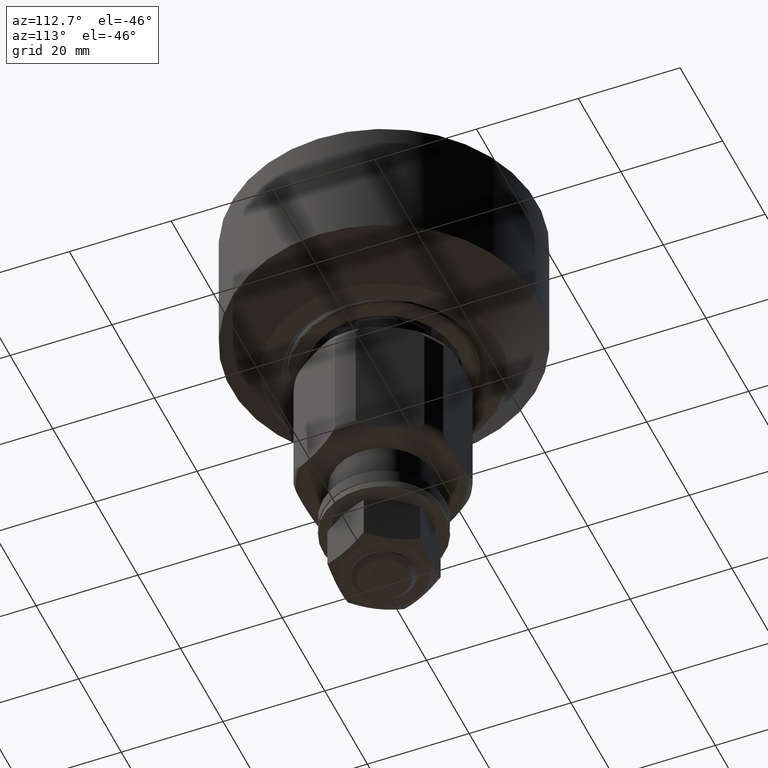
[diagram: clean part render]
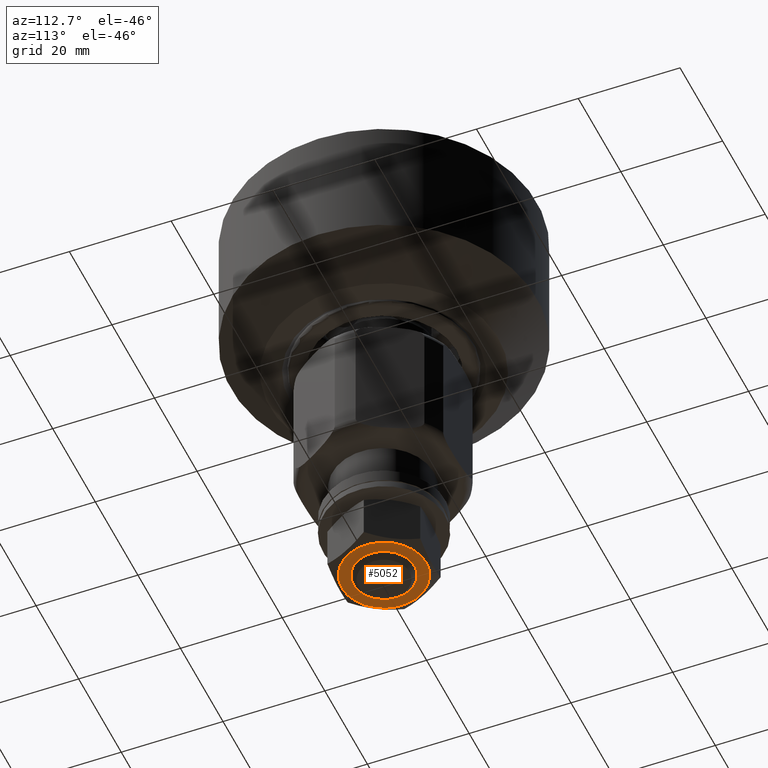
[diagram: same view with one face highlighted and labeled with its STEP entity id]
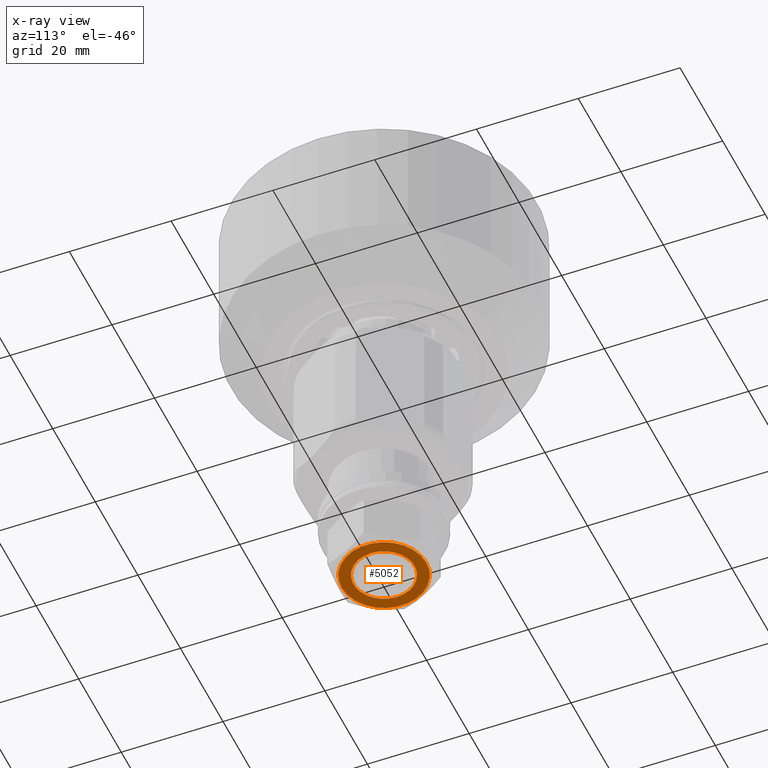
[diagram: x-ray of the same camera — body ghosted, the highlighted face saturated]
A machine part, auxiliary view. The second image highlights one B-rep face of the part: STEP entity #5052.
The next image is the same camera in x-ray: the body ghosted, the highlighted face saturated — about 0% of this face is hidden behind the body in this view.
In plain terms, the highlighted planar face has unit normal (-0, 0, 1).
Its self-contained STEP definition (entity closure, byte-faithful):
#196=FACE_BOUND('',#948,.T.);
#429=PLANE('',#5737);
#664=FACE_OUTER_BOUND('',#947,.T.);
#947=EDGE_LOOP('',(#4508));
#948=EDGE_LOOP('',(#4509));
#1216=CIRCLE('',#5732,6.00021528538923);
#1220=CIRCLE('',#5738,8.3);
#2402=VERTEX_POINT('',#9019);
#2406=VERTEX_POINT('',#9031);
#3124=EDGE_CURVE('',#2402,#2402,#1216,.T.);
#3130=EDGE_CURVE('',#2406,#2406,#1220,.T.);
#4508=ORIENTED_EDGE('',*,*,#3130,.T.);
#4509=ORIENTED_EDGE('',*,*,#3124,.F.);
#5052=ADVANCED_FACE('',(#664,#196),#429,.F.);
#5732=AXIS2_PLACEMENT_3D('',#9020,#6997,#6998);
#5737=AXIS2_PLACEMENT_3D('',#9030,#7009,#7010);
#5738=AXIS2_PLACEMENT_3D('',#9032,#7011,#7012);
#6997=DIRECTION('center_axis',(-1.,0.,0.));
#6998=DIRECTION('ref_axis',(0.,0.,-1.));
#7009=DIRECTION('center_axis',(1.,0.,0.));
#7010=DIRECTION('ref_axis',(0.,0.,-1.));
#7011=DIRECTION('center_axis',(-1.,0.,0.));
#7012=DIRECTION('ref_axis',(0.,1.,0.));
#9019=CARTESIAN_POINT('',(0.,7.34814444344694E-16,6.00021528538923));
#9020=CARTESIAN_POINT('Origin',(0.,0.,0.));
#9030=CARTESIAN_POINT('Origin',(0.,1.66533453693773E-15,-6.52256026967279E-15));
#9031=CARTESIAN_POINT('',(6.93889390390723E-17,-8.3,1.0164568432923E-15));
#9032=CARTESIAN_POINT('Origin',(0.,0.,0.));